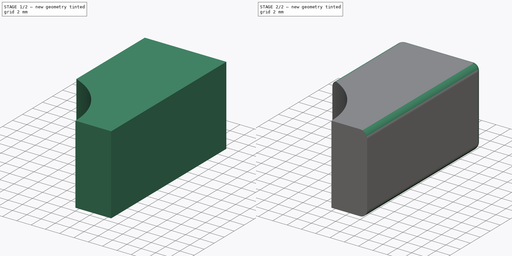
[diagram: build sequence overview — one tinted view per stage of 2, left to right]
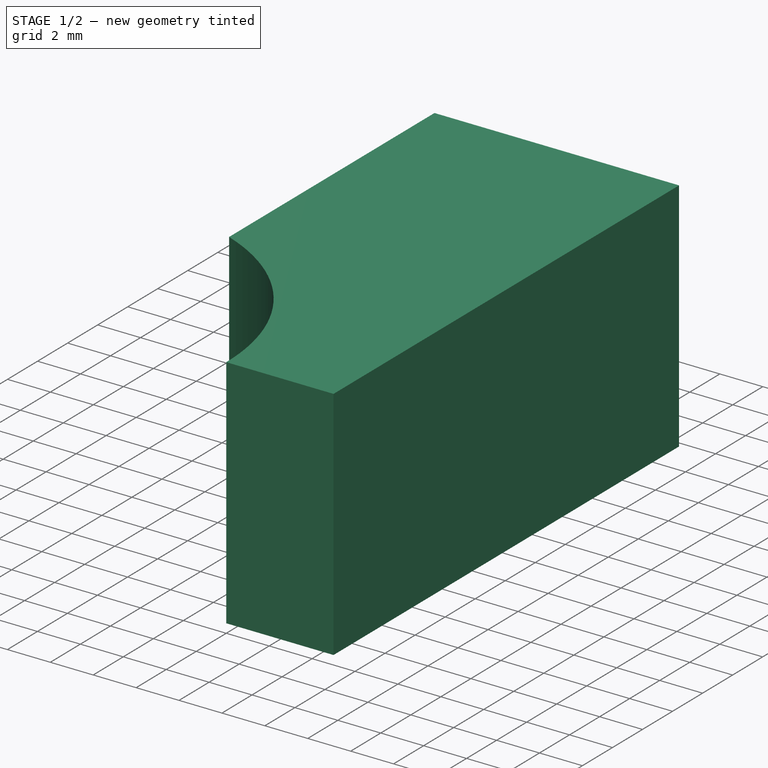
[diagram: stage 1 of 2 — iso view after this stage's code; geometry added in this stage tinted green]
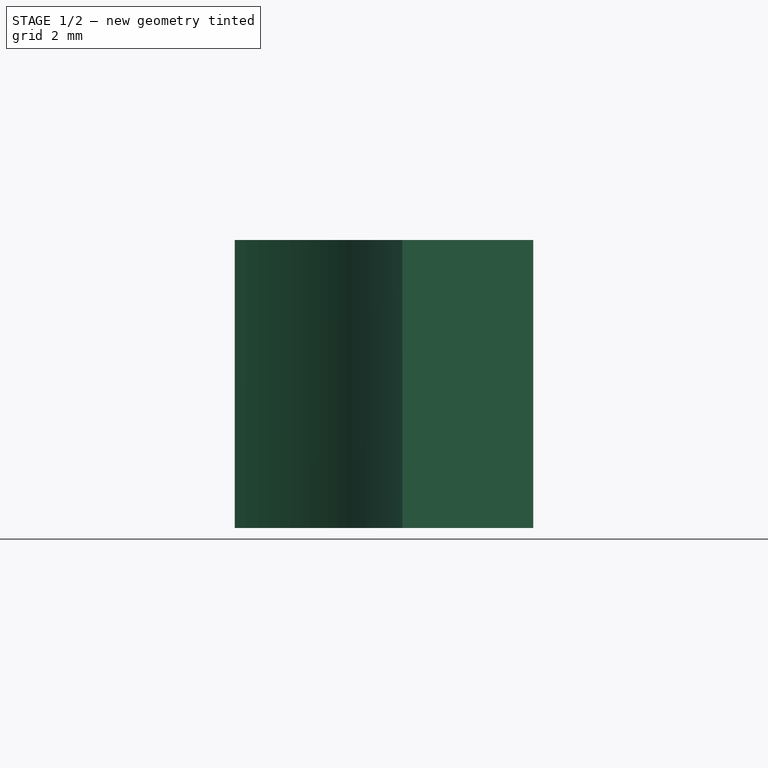
[diagram: stage 1 of 2 — front view after this stage's code; geometry added in this stage tinted green]
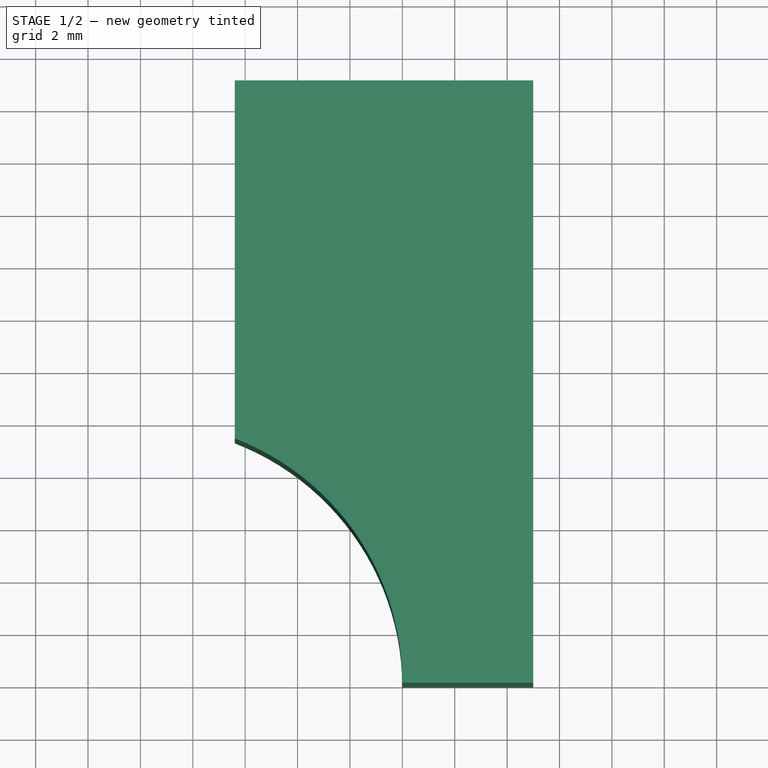
[diagram: stage 1 of 2 — top view after this stage's code; geometry added in this stage tinted green]
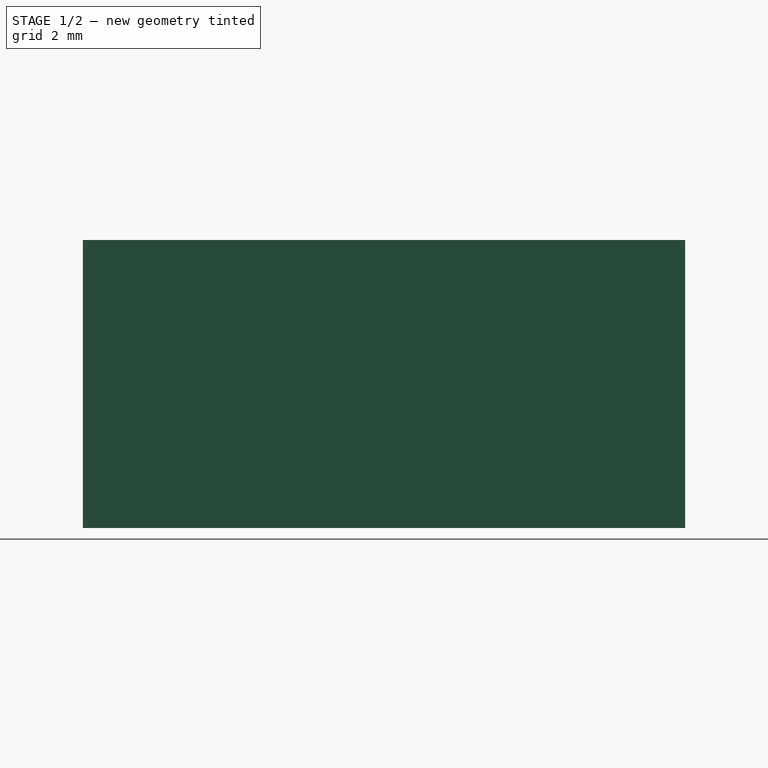
[diagram: stage 1 of 2 — right view after this stage's code; geometry added in this stage tinted green]
FCSTD DOCUMENT  (FreeCAD 0.16R5480 (Git))
Label: idler_switch_olive_extension
License: All rights reserved
LicenseURL: http://en.wikipedia.org/wiki/All_rights_reserved
objects: Sketcher::SketchObject×1, PartDesign::Pad×1, PartDesign::Fillet×1
note: 4 computed .brp shape members not serialized (recipe doc carries the construction recipe); baked Part::Feature solids carry a one-line shape summary decoded from their .brp

FEATURE [Sketcher::SketchObject] Sketch
  sketch-geometry (5):
    g0: ArcOfCircle CenterX=0 CenterY=0 CenterZ=0 NormalX=0 NormalY=0 NormalZ=1 Radius=10 StartAngle=0.000180858 EndAngle=1.20253
    g1: LineSegment StartX=3.6 StartY=23 StartZ=0 EndX=15 EndY=23 EndZ=0
    g2: LineSegment StartX=3.6 StartY=23 StartZ=0 EndX=3.6 EndY=9.32952 EndZ=0
    g3: LineSegment StartX=15 StartY=23 StartZ=0 EndX=15 EndY=0.00180858 EndZ=0
    g4: LineSegment StartX=10 StartY=0.00180858 StartZ=0 EndX=15 EndY=0.00180858 EndZ=0
  constraints (14):
    c: Horizontal(g1)
    c: Coincident(g1,g3)
    c: Coincident(g1,g2)
    c: Coincident(g2,g0)
    c: DistanceY(g-1,g1) = 23
    c: DistanceX(g-1,g1) = 15
    c: Coincident(g0,g-1)
    c: Vertical(g2)
    c: Vertical(g3)
    c: Radius(g0) = 10
    c: Horizontal(g4)
    c: Coincident(g3,g4)
    c: Coincident(g0,g4)
    c: DistanceX(g-1,g1) = 3.6
FEATURE [PartDesign::Pad] Pad
  Length = 11
  Length2 = 100
  Sketch = -> Sketch
  Type = 0
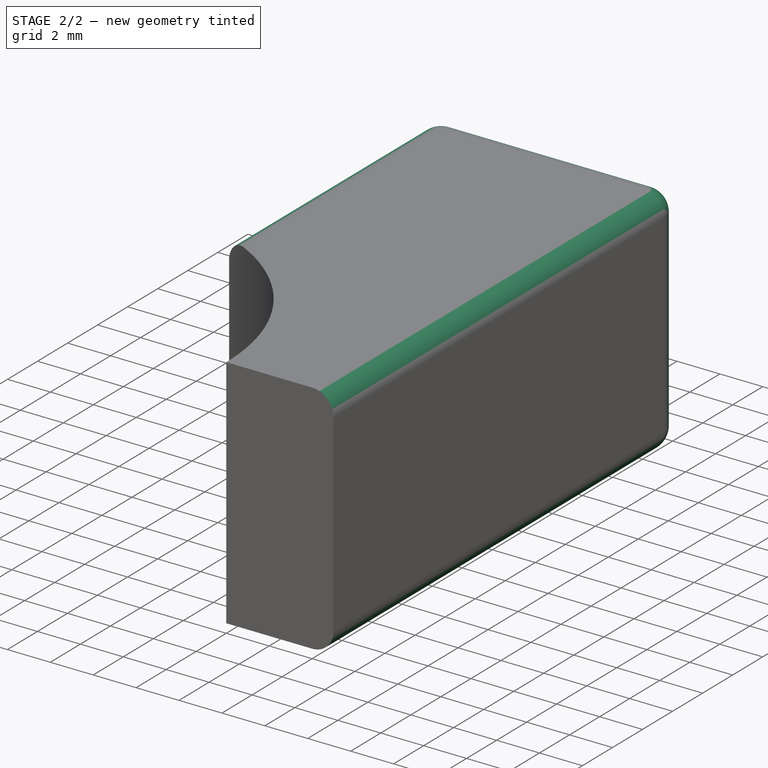
[diagram: stage 2 of 2 — iso view after this stage's code; geometry added in this stage tinted green]
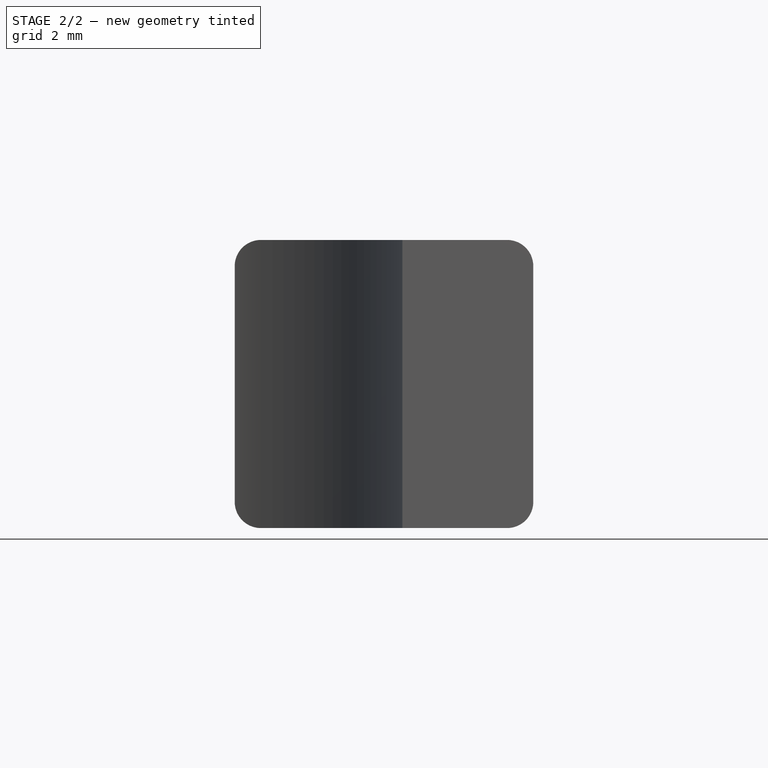
[diagram: stage 2 of 2 — front view after this stage's code; geometry added in this stage tinted green]
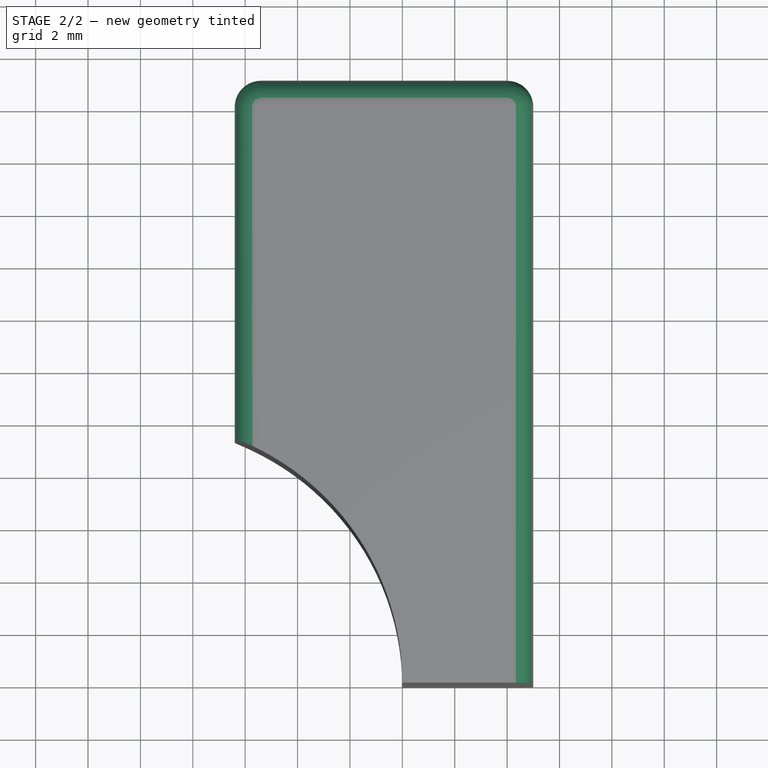
[diagram: stage 2 of 2 — top view after this stage's code; geometry added in this stage tinted green]
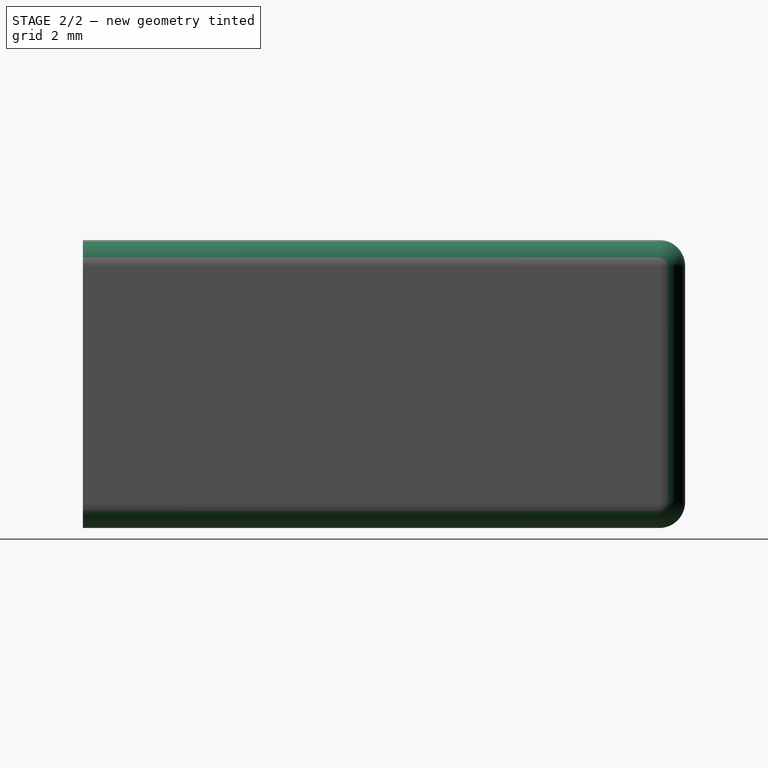
[diagram: stage 2 of 2 — right view after this stage's code; geometry added in this stage tinted green]
FEATURE [PartDesign::Fillet] Fillet
  Base = -> Pad [Edge12,Edge6,Edge7,Edge5,Edge9,Edge8,Edge10,Edge13]
  Radius = 1
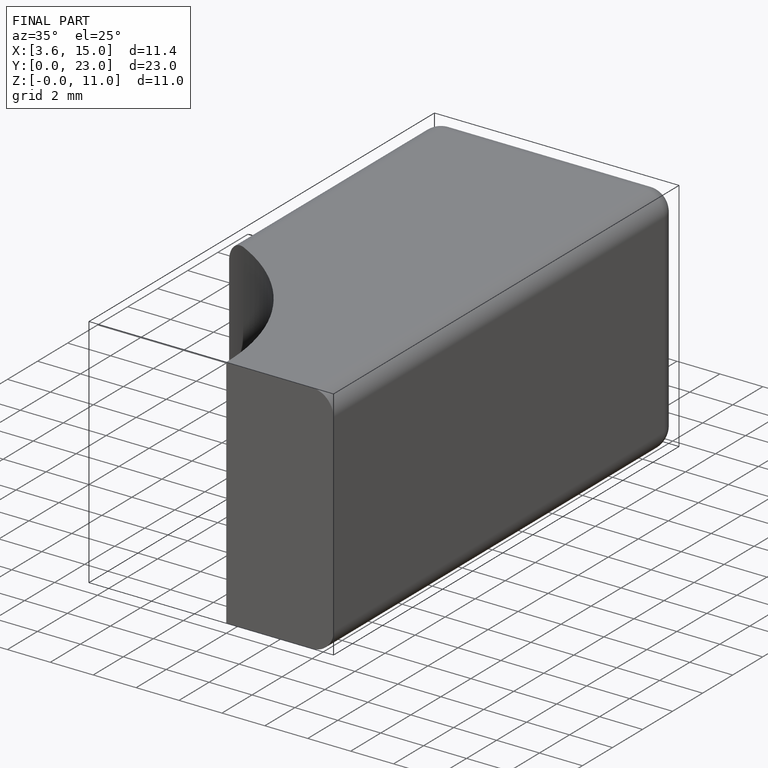
[diagram: finished part — iso view with bounding-box wireframe]
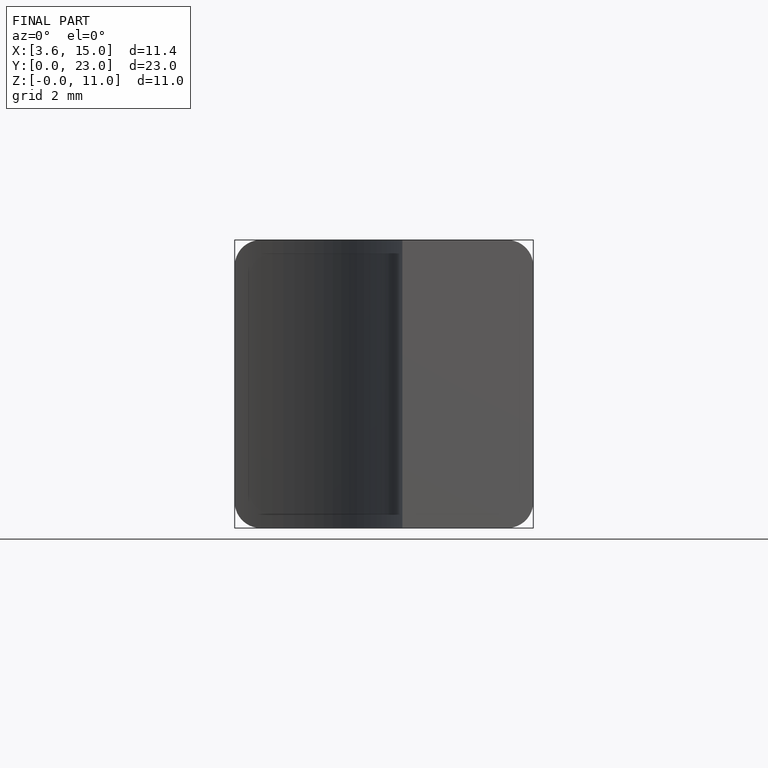
[diagram: finished part — front view with bounding-box wireframe]
